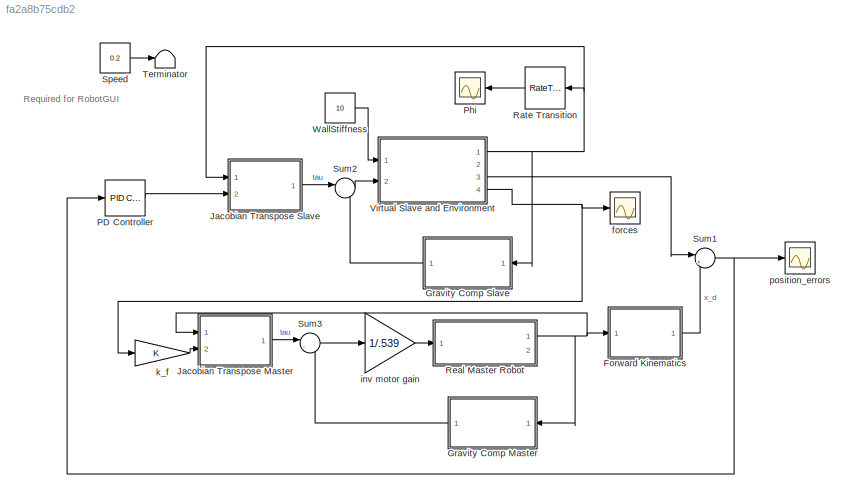
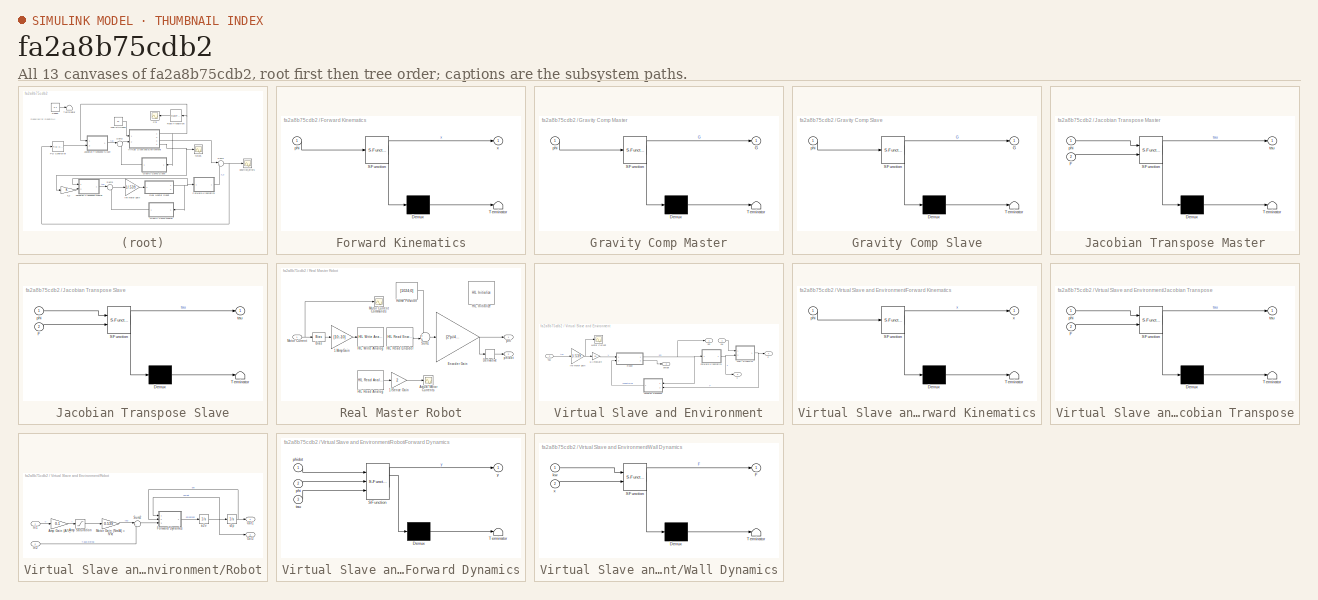
[diagram: thumbnail index - all 13 canvases of the model, root first then tree order]
MODEL slx_fa2a8b75cdb2
KIND model
CONFIG AbsTol = auto
CONFIG EnableMultiTasking = on
CONFIG FixedStep = 0.001
CONFIG MaxStep = auto
CONFIG MinStep = auto
CONFIG RelTol = 1e-3
CONFIG SampleTimeConstraint = Unconstrained
CONFIG Solver = ode1
CONFIG SolverName = ode1
CONFIG StartTime = 0.0
CONFIG StopTime = inf
BLOCK [SubSystem] Forward Kinematics
  ErrorFcn = Stateflow.Translate.translate
  PermitHierarchicalResolution = ExplicitOnly
  Ports = [1, 1]
  RequestExecContextInheritance = off
  SFBlockType = MATLAB Function
  TreatAsAtomicUnit = on
BLOCK [Demux] Forward Kinematics/ Demux 
  Outputs = 1
  Ports = [1, 1]
BLOCK [S-Function] Forward Kinematics/ SFunction 
  EnableBusSupport = on
  FunctionName = sf_sfun
  PortCounts = [1 2]
  Ports = [1, 2]
  SFcnIsStateOwnerBlock = off
  SFunctionDeploymentMode = off
  Tag = Stateflow S-Function directforcefeedback_opspace 6
BLOCK [Terminator] Forward Kinematics/ Terminator 
BLOCK [Inport] Forward Kinematics/phi
  IconDisplay = Port number
BLOCK [Outport] Forward Kinematics/x
  IconDisplay = Port number
BLOCK [SubSystem] Gravity Comp Master
  ErrorFcn = Stateflow.Translate.translate
  PermitHierarchicalResolution = ExplicitOnly
  Ports = [1, 1]
  RequestExecContextInheritance = off
  SFBlockType = MATLAB Function
  TreatAsAtomicUnit = on
BLOCK [Demux] Gravity Comp Master/ Demux 
  Outputs = 1
  Ports = [1, 1]
BLOCK [S-Function] Gravity Comp Master/ SFunction 
  EnableBusSupport = on
  FunctionName = sf_sfun
  PortCounts = [1 2]
  Ports = [1, 2]
  SFcnIsStateOwnerBlock = off
  SFunctionDeploymentMode = off
  Tag = Stateflow S-Function directforcefeedback_opspace 2
BLOCK [Terminator] Gravity Comp Master/ Terminator 
BLOCK [Outport] Gravity Comp Master/G
  IconDisplay = Port number
BLOCK [Inport] Gravity Comp Master/phi
  IconDisplay = Port number
BLOCK [SubSystem] Gravity Comp Slave
  ErrorFcn = Stateflow.Translate.translate
  PermitHierarchicalResolution = ExplicitOnly
  Ports = [1, 1]
  RequestExecContextInheritance = off
  SFBlockType = MATLAB Function
  TreatAsAtomicUnit = on
BLOCK [Demux] Gravity Comp Slave/ Demux 
  Outputs = 1
  Ports = [1, 1]
BLOCK [S-Function] Gravity Comp Slave/ SFunction 
  EnableBusSupport = on
  FunctionName = sf_sfun
  PortCounts = [1 2]
  Ports = [1, 2]
  SFcnIsStateOwnerBlock = off
  SFunctionDeploymentMode = off
  Tag = Stateflow S-Function directforcefeedback_opspace 4
BLOCK [Terminator] Gravity Comp Slave/ Terminator 
BLOCK [Outport] Gravity Comp Slave/G
  IconDisplay = Port number
BLOCK [Inport] Gravity Comp Slave/phi
  IconDisplay = Port number
BLOCK [SubSystem] Jacobian Transpose Master
  ErrorFcn = Stateflow.Translate.translate
  PermitHierarchicalResolution = ExplicitOnly
  Ports = [2, 1]
  RequestExecContextInheritance = off
  SFBlockType = MATLAB Function
  TreatAsAtomicUnit = on
BLOCK [Demux] Jacobian Transpose Master/ Demux 
  Outputs = 1
  Ports = [1, 1]
BLOCK [S-Function] Jacobian Transpose Master/ SFunction 
  EnableBusSupport = on
  FunctionName = sf_sfun
  PortCounts = [2 2]
  Ports = [2, 2]
  SFcnIsStateOwnerBlock = off
  SFunctionDeploymentMode = off
  Tag = Stateflow S-Function directforcefeedback_opspace 7
BLOCK [Terminator] Jacobian Transpose Master/ Terminator 
BLOCK [Inport] Jacobian Transpose Master/F
  IconDisplay = Port number
  Port = 2
BLOCK [Inport] Jacobian Transpose Master/phi
  IconDisplay = Port number
BLOCK [Outport] Jacobian Transpose Master/tau
  IconDisplay = Port number
BLOCK [SubSystem] Jacobian Transpose Slave
  ErrorFcn = Stateflow.Translate.translate
  PermitHierarchicalResolution = ExplicitOnly
  Ports = [2, 1]
  RequestExecContextInheritance = off
  SFBlockType = MATLAB Function
  TreatAsAtomicUnit = on
BLOCK [Demux] Jacobian Transpose Slave/ Demux 
  Outputs = 1
  Ports = [1, 1]
BLOCK [S-Function] Jacobian Transpose Slave/ SFunction 
  EnableBusSupport = on
  FunctionName = sf_sfun
  PortCounts = [2 2]
  Ports = [2, 2]
  SFcnIsStateOwnerBlock = off
  SFunctionDeploymentMode = off
  Tag = Stateflow S-Function directforcefeedback_opspace 8
BLOCK [Terminator] Jacobian Transpose Slave/ Terminator 
BLOCK [Inport] Jacobian Transpose Slave/F
  IconDisplay = Port number
  Port = 2
BLOCK [Inport] Jacobian Transpose Slave/phi
  IconDisplay = Port number
BLOCK [Outport] Jacobian Transpose Slave/tau
  IconDisplay = Port number
BLOCK [Reference] PD Controller  REF=simulink/Continuous/PID Controller
  AttributesFormatString = 'PGain='%<P>\n'DGain='%<D>
  Ports = [1, 1]
  SourceBlock = simulink/Continuous/PID Controller
  SourceProductBaseCode = SL
  SourceProductName = Simulink
  SourceType = PID 1dof
BLOCK [Scope] Phi
  AttributesFormatString = SampleTime =%<SampleTime>
  Floating = off
  NumInputPorts = 1
  Ports = [1]
  ScopeSpecificationString = Simulink.scopes.TimeScopeBlockCfg('CurrentConfiguration', extmgr.ConfigurationSet(extmgr.Configuration('Core','General UI',true),extmgr.Configuration('Core','Source UI',true),extmgr.Configuration('Sources','WiredSimulink',true,'DataLoggingVariableName','ScopeData3','DataLoggingSaveFormat','StructureWithTime','DataLoggingDecimation','10','DataLoggingDecimateData',true,'SampleTime','0.1'),extmgr.Con...<+1683ch>
BLOCK [RateTransition] Rate Transition
  OutPortSampleTime = 0.05
  OutPortSampleTimeMultiple = 10
  OutPortSampleTimeOpt = Inherit
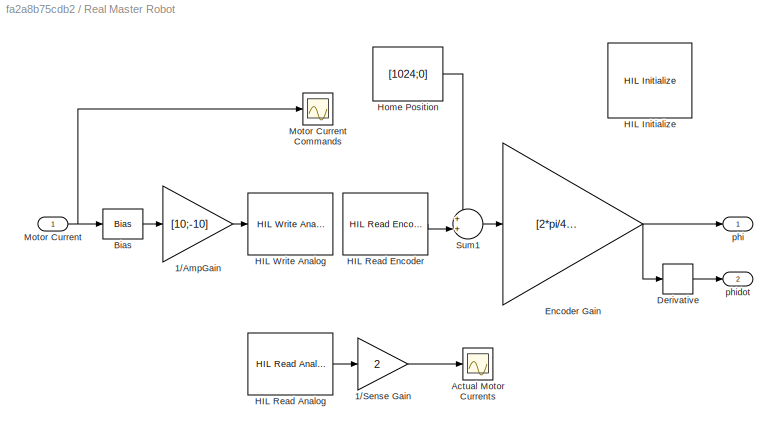
BLOCK [SubSystem] Real Master Robot
  Ports = [1, 2]
  RequestExecContextInheritance = off
BLOCK [Gain] Real Master Robot/1//AmpGain
  Gain = [10;-10]
  OutDataTypeStr = Inherit: Inherit via internal rule
  ParamDataTypeStr = Inherit: Inherit via internal rule
  SaturateOnIntegerOverflow = off
BLOCK [Gain] Real Master Robot/1//Sense Gain
  Gain = 2
  OutDataTypeStr = Inherit: Inherit via internal rule
  ParamDataTypeStr = Inherit: Inherit via internal rule
  SaturateOnIntegerOverflow = off
BLOCK [Scope] Real Master Robot/Actual Motor Currents
  Floating = off
  NumInputPorts = 1
  Ports = [1]
  ScopeSpecificationString = Simulink.scopes.TimeScopeBlockCfg('CurrentConfiguration', extmgr.ConfigurationSet(extmgr.Configuration('Core','General UI',true),extmgr.Configuration('Core','Source UI',true),extmgr.Configuration('Sources','WiredSimulink',true,'DataLoggingSaveFormat','StructureWithTime','DataLoggingDecimation','1','DataLoggingDecimateData',true),extmgr.Configuration('Visuals','Time Domain',true,'SerializedDisplays...<+1699ch>
BLOCK [Bias] Real Master Robot/Bias
  Bias = [-0.0425; 0.0445]
  SaturateOnIntegerOverflow = off
BLOCK [Derivative] Real Master Robot/Derivative
BLOCK [Gain] Real Master Robot/Encoder Gain
  Gain = [2*pi/4096 ; -2*pi/4096]
  OutDataTypeStr = Inherit: Inherit via internal rule
  ParamDataTypeStr = Inherit: Inherit via internal rule
  SaturateOnIntegerOverflow = off
BLOCK [Reference] Real Master Robot/HIL Initialize  REF=quarc_library/Data Acquisition/Generic/Configuration/HIL Initialize
  AttributesFormatString = %<object_name> (%<board_type>-%<board_number>)
  Ports = []
  SourceBlock = quarc_library/Data Acquisition/Generic/Configuration/HIL Initialize
  SourceProductName = QUARC Targets
  SourceType = HIL Initialize
  UserDataPersistent = on
BLOCK [Reference] Real Master Robot/HIL Read Analog  REF=quarc_library/Data Acquisition/Generic/Immediate I//O/HIL Read Analog
  AttributesFormatString = (%<object_name>)
  Ports = [0, 1]
  SourceBlock = quarc_library/Data Acquisition/Generic/Immediate I//O/HIL Read Analog
  SourceProductName = QUARC Targets
  SourceType = HIL Read Analog
  UserDataPersistent = on
BLOCK [Reference] Real Master Robot/HIL Read Encoder  REF=quarc_library/Data Acquisition/Generic/Immediate I//O/HIL Read Encoder
  AttributesFormatString = (%<object_name>)
  Ports = [0, 1]
  SourceBlock = quarc_library/Data Acquisition/Generic/Immediate I//O/HIL Read Encoder
  SourceProductName = QUARC Targets
  SourceType = HIL Read Encoder
  UserDataPersistent = on
BLOCK [Reference] Real Master Robot/HIL Write Analog  REF=quarc_library/Data Acquisition/Generic/Immediate I//O/HIL Write Analog
  AttributesFormatString = (%<object_name>)
  Ports = [1]
  SourceBlock = quarc_library/Data Acquisition/Generic/Immediate I//O/HIL Write Analog
  SourceProductName = QUARC Targets
  SourceType = HIL Write Analog
  UserDataPersistent = on
BLOCK [Constant] Real Master Robot/Home Position
  Value = [1024;0]
  VectorParams1D = off
BLOCK [Inport] Real Master Robot/Motor Current
  IconDisplay = Port number
BLOCK [Scope] Real Master Robot/Motor Current Commands
  Floating = off
  NumInputPorts = 1
  Ports = [1]
  ScopeSpecificationString = Simulink.scopes.TimeScopeBlockCfg('CurrentConfiguration', extmgr.ConfigurationSet(extmgr.Configuration('Core','General UI',true),extmgr.Configuration('Core','Source UI',true),extmgr.Configuration('Sources','WiredSimulink',true,'DataLoggingVariableName','ScopeData1','DataLoggingSaveFormat','StructureWithTime','DataLoggingDecimation','1','DataLoggingDecimateData',true),extmgr.Configuration('Visuals'...<+1709ch>
BLOCK [Sum] Real Master Robot/Sum1
  IconShape = round
  InputSameDT = off
  Inputs = ++|
  OutDataTypeStr = Inherit: Inherit via internal rule
  Ports = [2, 1]
  SaturateOnIntegerOverflow = off
BLOCK [Outport] Real Master Robot/phi
  IconDisplay = Port number
BLOCK [Outport] Real Master Robot/phidot
  IconDisplay = Port number
  Port = 2
BLOCK [Constant] Speed
  AttributesFormatString = (circles/sec)
  Value = 0.2
BLOCK [Sum] Sum1
  IconShape = round
  InputSameDT = off
  Inputs = |+-
  OutDataTypeStr = Inherit: Inherit via internal rule
  Ports = [2, 1]
  SaturateOnIntegerOverflow = off
BLOCK [Sum] Sum2
  IconShape = round
  InputSameDT = off
  Inputs = |-+
  OutDataTypeStr = Inherit: Inherit via internal rule
  Ports = [2, 1]
  SaturateOnIntegerOverflow = off
BLOCK [Sum] Sum3
  IconShape = round
  InputSameDT = off
  Inputs = |-+
  OutDataTypeStr = Inherit: Inherit via internal rule
  Ports = [2, 1]
  SaturateOnIntegerOverflow = off
BLOCK [Terminator] Terminator
BLOCK [SubSystem] Virtual Slave and Environment
  Ports = [2, 4]
  RequestExecContextInheritance = off
BLOCK [Gain] Virtual Slave and Environment/1//AmpGain
  Gain = 10
  OutDataTypeStr = Inherit: Inherit via internal rule
  ParamDataTypeStr = Inherit: Inherit via internal rule
  SaturateOnIntegerOverflow = off
BLOCK [Outport] Virtual Slave and Environment/F
  IconDisplay = Port number
  Port = 4
BLOCK [SubSystem] Virtual Slave and Environment/Forward Kinematics
  ErrorFcn = Stateflow.Translate.translate
  PermitHierarchicalResolution = ExplicitOnly
  Ports = [1, 1]
  RequestExecContextInheritance = off
  SFBlockType = MATLAB Function
  TreatAsAtomicUnit = on
BLOCK [Demux] Virtual Slave and Environment/Forward Kinematics/ Demux 
  Outputs = 1
  Ports = [1, 1]
BLOCK [S-Function] Virtual Slave and Environment/Forward Kinematics/ SFunction 
  EnableBusSupport = on
  FunctionName = sf_sfun
  PortCounts = [1 2]
  Ports = [1, 2]
  SFcnIsStateOwnerBlock = off
  SFunctionDeploymentMode = off
  Tag = Stateflow S-Function directforcefeedback_opspace 9
BLOCK [Terminator] Virtual Slave and Environment/Forward Kinematics/ Terminator 
BLOCK [Inport] Virtual Slave and Environment/Forward Kinematics/phi
  IconDisplay = Port number
BLOCK [Outport] Virtual Slave and Environment/Forward Kinematics/x
  IconDisplay = Port number
BLOCK [SubSystem] Virtual Slave and Environment/Jacobian Transpose
  ErrorFcn = Stateflow.Translate.translate
  PermitHierarchicalResolution = ExplicitOnly
  Ports = [2, 1]
  RequestExecContextInheritance = off
  SFBlockType = MATLAB Function
  TreatAsAtomicUnit = on
BLOCK [Demux] Virtual Slave and Environment/Jacobian Transpose/ Demux 
  Outputs = 1
  Ports = [1, 1]
BLOCK [S-Function] Virtual Slave and Environment/Jacobian Transpose/ SFunction 
  EnableBusSupport = on
  FunctionName = sf_sfun
  PortCounts = [2 2]
  Ports = [2, 2]
  SFcnIsStateOwnerBlock = off
  SFunctionDeploymentMode = off
  Tag = Stateflow S-Function directforcefeedback_opspace 1
BLOCK [Terminator] Virtual Slave and Environment/Jacobian Transpose/ Terminator 
BLOCK [Inport] Virtual Slave and Environment/Jacobian Transpose/F
  IconDisplay = Port number
  Port = 2
BLOCK [Inport] Virtual Slave and Environment/Jacobian Transpose/phi
  IconDisplay = Port number
BLOCK [Outport] Virtual Slave and Environment/Jacobian Transpose/tau
  IconDisplay = Port number
BLOCK [Scope] Virtual Slave and Environment/Motor Current
  Floating = off
  NumInputPorts = 1
  Ports = [1]
  ScopeSpecificationString = Simulink.scopes.TimeScopeBlockCfg('CurrentConfiguration', extmgr.ConfigurationSet(extmgr.Configuration('Core','General UI',true),extmgr.Configuration('Core','Source UI',true),extmgr.Configuration('Sources','WiredSimulink',true,'DataLoggingVariableName','ScopeData1','DataLoggingSaveFormat','StructureWithTime','DataLoggingDecimation','1','DataLoggingDecimateData',true),extmgr.Configuration('Visuals'...<+1651ch>
BLOCK [SubSystem] Virtual Slave and Environment/Robot
  Ports = [2, 2]
  RequestExecContextInheritance = off
BLOCK [Gain] Virtual Slave and Environment/Robot/Amp Gain (A//V)
  Gain = 0.1
  OutDataTypeStr = Inherit: Inherit via internal rule
  ParamDataTypeStr = Inherit: Inherit via internal rule
  SaturateOnIntegerOverflow = off
BLOCK [Saturate] Virtual Slave and Environment/Robot/Amp Saturation
  InputPortMap = u0
  LowerLimit = -1
  Ports = [1, 1]
  UpperLimit = 1
  ZeroCross = off
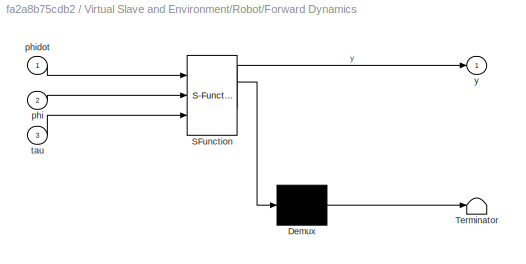
BLOCK [SubSystem] Virtual Slave and Environment/Robot/Forward Dynamics
  ErrorFcn = Stateflow.Translate.translate
  PermitHierarchicalResolution = ExplicitOnly
  Ports = [3, 1]
  RequestExecContextInheritance = off
  SFBlockType = MATLAB Function
  TreatAsAtomicUnit = on
BLOCK [Demux] Virtual Slave and Environment/Robot/Forward Dynamics/ Demux 
  Outputs = 1
  Ports = [1, 1]
BLOCK [S-Function] Virtual Slave and Environment/Robot/Forward Dynamics/ SFunction 
  EnableBusSupport = on
  FunctionName = sf_sfun
  PortCounts = [3 2]
  Ports = [3, 2]
  SFcnIsStateOwnerBlock = off
  SFunctionDeploymentMode = off
  Tag = Stateflow S-Function directforcefeedback_opspace 3
BLOCK [Terminator] Virtual Slave and Environment/Robot/Forward Dynamics/ Terminator 
BLOCK [Inport] Virtual Slave and Environment/Robot/Forward Dynamics/phi
  IconDisplay = Port number
  Port = 2
BLOCK [Inport] Virtual Slave and Environment/Robot/Forward Dynamics/phidot
  IconDisplay = Port number
BLOCK [Inport] Virtual Slave and Environment/Robot/Forward Dynamics/tau
  IconDisplay = Port number
  Port = 3
BLOCK [Outport] Virtual Slave and Environment/Robot/Forward Dynamics/y
  IconDisplay = Port number
BLOCK [Inport] Virtual Slave and Environment/Robot/In1
  IconDisplay = Port number
BLOCK [Inport] Virtual Slave and Environment/Robot/In2
  IconDisplay = Port number
  Port = 2
BLOCK [Gain] Virtual Slave and Environment/Robot/Motor Gain (Nm//A) = N*kt
  Gain = 0.539
  OutDataTypeStr = Inherit: Inherit via internal rule
  ParamDataTypeStr = Inherit: Inherit via internal rule
  SaturateOnIntegerOverflow = off
BLOCK [Outport] Virtual Slave and Environment/Robot/Out1
  IconDisplay = Port number
BLOCK [Outport] Virtual Slave and Environment/Robot/Out2
  IconDisplay = Port number
  Port = 2
BLOCK [Sum] Virtual Slave and Environment/Robot/Sum2
  IconShape = round
  InputSameDT = off
  Inputs = |+-
  OutDataTypeStr = Inherit: Inherit via internal rule
  Ports = [2, 1]
  SaturateOnIntegerOverflow = off
BLOCK [Integrator] Virtual Slave and Environment/Robot/a2v
  Ports = [1, 1]
BLOCK [Integrator] Virtual Slave and Environment/Robot/v2p
  InitialCondition = [pi/2;0]
  Ports = [1, 1]
BLOCK [Inport] Virtual Slave and Environment/Tau
  IconDisplay = Port number
  Port = 2
BLOCK [SubSystem] Virtual Slave and Environment/Wall Dynamics
  ErrorFcn = Stateflow.Translate.translate
  PermitHierarchicalResolution = ExplicitOnly
  Ports = [2, 1]
  RequestExecContextInheritance = off
  SFBlockType = MATLAB Function
  TreatAsAtomicUnit = on
BLOCK [Demux] Virtual Slave and Environment/Wall Dynamics/ Demux 
  Outputs = 1
  Ports = [1, 1]
BLOCK [S-Function] Virtual Slave and Environment/Wall Dynamics/ SFunction 
  EnableBusSupport = on
  FunctionName = sf_sfun
  PortCounts = [2 2]
  Ports = [2, 2]
  SFcnIsStateOwnerBlock = off
  SFunctionDeploymentMode = off
  Tag = Stateflow S-Function directforcefeedback_opspace 5
BLOCK [Terminator] Virtual Slave and Environment/Wall Dynamics/ Terminator 
BLOCK [Outport] Virtual Slave and Environment/Wall Dynamics/F
  IconDisplay = Port number
BLOCK [Inport] Virtual Slave and Environment/Wall Dynamics/kw
  IconDisplay = Port number
BLOCK [Inport] Virtual Slave and Environment/Wall Dynamics/x
  IconDisplay = Port number
  Port = 2
BLOCK [Gain] Virtual Slave and Environment/inv motor gain
  Gain = 1/.539
  OutDataTypeStr = Inherit: Inherit via internal rule
  ParamDataTypeStr = Inherit: Inherit via internal rule
  SaturateOnIntegerOverflow = off
BLOCK [Inport] Virtual Slave and Environment/kw
  IconDisplay = Port number
BLOCK [Outport] Virtual Slave and Environment/phi
  IconDisplay = Port number
BLOCK [Outport] Virtual Slave and Environment/phidot
  IconDisplay = Port number
  Port = 2
BLOCK [Outport] Virtual Slave and Environment/x
  IconDisplay = Port number
  Port = 3
BLOCK [Constant] WallStiffness
  AttributesFormatString = (N/mm)
  Value = 10
BLOCK [Scope] forces
  Floating = off
  NumInputPorts = 1
  Ports = [1]
  ScopeSpecificationString = Simulink.scopes.TimeScopeBlockCfg('CurrentConfiguration', extmgr.ConfigurationSet(extmgr.Configuration('Core','General UI',true),extmgr.Configuration('Core','Source UI',true),extmgr.Configuration('Sources','WiredSimulink',true,'DataLoggingVariableName','forces','DataLogging',true,'DataLoggingDecimateData',true,'DataLoggingDecimation','1','DataLoggingSaveFormat','StructureWithTime'),extmgr.Configur...<+1507ch>
BLOCK [Gain] inv motor gain
  Gain = 1/.539
  OutDataTypeStr = Inherit: Inherit via internal rule
  ParamDataTypeStr = Inherit: Inherit via internal rule
  SaturateOnIntegerOverflow = off
BLOCK [Gain] k_f
  OutDataTypeStr = Inherit: Inherit via internal rule
  ParamDataTypeStr = Inherit: Inherit via internal rule
  SaturateOnIntegerOverflow = off
BLOCK [Scope] position_errors
  Floating = off
  NumInputPorts = 1
  Ports = [1]
  ScopeSpecificationString = Simulink.scopes.TimeScopeBlockCfg('CurrentConfiguration', extmgr.ConfigurationSet(extmgr.Configuration('Core','General UI',true),extmgr.Configuration('Core','Source UI',true),extmgr.Configuration('Sources','WiredSimulink',true,'DataLoggingVariableName','position_errors','DataLogging',true,'DataLoggingDecimateData',true,'DataLoggingDecimation','1','DataLoggingSaveFormat','StructureWithTime'),extmgr...<+1526ch>
ANNOTATION (root): Required for RobotGUI
LINE Forward Kinematics:1 -> Sum1:2
LINE Gravity Comp Master:1 -> Sum3:2
LINE Gravity Comp Slave:1 -> Sum2:2
LINE Jacobian Transpose Master:1 -> Sum3:1
LINE Jacobian Transpose Slave:1 -> Sum2:1
LINE PD Controller:1 -> Jacobian Transpose Slave:2
LINE Rate Transition:1 -> Phi:1
LINE Real Master Robot/1//AmpGain:1 -> Real Master Robot/HIL Write Analog:1
LINE Real Master Robot/1//Sense Gain:1 -> Real Master Robot/Actual Motor Currents:1
LINE Real Master Robot/Bias:1 -> Real Master Robot/1//AmpGain:1
LINE Real Master Robot/Derivative:1 -> Real Master Robot/phidot:1
NET Real Master Robot/Encoder Gain:1 -> Real Master Robot/Derivative:1, Real Master Robot/phi:1
LINE Real Master Robot/HIL Read Analog:1 -> Real Master Robot/1//Sense Gain:1
LINE Real Master Robot/HIL Read Encoder:1 -> Real Master Robot/Sum1:2
LINE Real Master Robot/Home Position:1 -> Real Master Robot/Sum1:1
NET Real Master Robot/Motor Current:1 -> Real Master Robot/Bias:1, Real Master Robot/Motor Current Commands:1
LINE Real Master Robot/Sum1:1 -> Real Master Robot/Encoder Gain:1
NET Real Master Robot:1 -> Forward Kinematics:1, Gravity Comp Master:1, Jacobian Transpose Master:1
LINE Speed:1 -> Terminator:1
NET Sum1:1 -> PD Controller:1, position_errors:1
LINE Sum2:1 -> Virtual Slave and Environment:2
LINE Sum3:1 -> inv motor gain:1
LINE Virtual Slave and Environment/1//AmpGain:1 -> Virtual Slave and Environment/Robot:1
NET Virtual Slave and Environment/Forward Kinematics:1 -> Virtual Slave and Environment/Wall Dynamics:2, Virtual Slave and Environment/x:1
LINE Virtual Slave and Environment/Jacobian Transpose:1 -> Virtual Slave and Environment/Robot:2
LINE Virtual Slave and Environment/Robot/Amp Gain (A//V):1 -> Virtual Slave and Environment/Robot/Amp Saturation:1
LINE Virtual Slave and Environment/Robot/Amp Saturation:1 -> Virtual Slave and Environment/Robot/Motor Gain (Nm//A) = N*kt:1
LINE Virtual Slave and Environment/Robot/Forward Dynamics:1 -> Virtual Slave and Environment/Robot/a2v:1
LINE Virtual Slave and Environment/Robot/In1:1 -> Virtual Slave and Environment/Robot/Amp Gain (A//V):1
LINE Virtual Slave and Environment/Robot/In2:1 -> Virtual Slave and Environment/Robot/Sum2:2
LINE Virtual Slave and Environment/Robot/Motor Gain (Nm//A) = N*kt:1 -> Virtual Slave and Environment/Robot/Sum2:1
LINE Virtual Slave and Environment/Robot/Sum2:1 -> Virtual Slave and Environment/Robot/Forward Dynamics:3
NET Virtual Slave and Environment/Robot/a2v:1 -> Virtual Slave and Environment/Robot/Forward Dynamics:1, Virtual Slave and Environment/Robot/Out2:1, Virtual Slave and Environment/Robot/v2p:1
NET Virtual Slave and Environment/Robot/v2p:1 -> Virtual Slave and Environment/Robot/Forward Dynamics:2, Virtual Slave and Environment/Robot/Out1:1
NET Virtual Slave and Environment/Robot:1 -> Virtual Slave and Environment/Forward Kinematics:1, Virtual Slave and Environment/Jacobian Transpose:1, Virtual Slave and Environment/phi:1
LINE Virtual Slave and Environment/Robot:2 -> Virtual Slave and Environment/phidot:1
LINE Virtual Slave and Environment/Tau:1 -> Virtual Slave and Environment/inv motor gain:1
NET Virtual Slave and Environment/Wall Dynamics:1 -> Virtual Slave and Environment/F:1, Virtual Slave and Environment/Jacobian Transpose:2
NET Virtual Slave and Environment/inv motor gain:1 -> Virtual Slave and Environment/1//AmpGain:1, Virtual Slave and Environment/Motor Current:1
LINE Virtual Slave and Environment/kw:1 -> Virtual Slave and Environment/Wall Dynamics:1
NET Virtual Slave and Environment:1 -> Gravity Comp Slave:1, Jacobian Transpose Slave:1, Rate Transition:1
LINE Virtual Slave and Environment:3 -> Sum1:1
NET Virtual Slave and Environment:4 -> forces:1, k_f:1
LINE WallStiffness:1 -> Virtual Slave and Environment:1
LINE inv motor gain:1 -> Real Master Robot:1
LINE k_f:1 -> Jacobian Transpose Master:2
note: NET lines group one-source signal fan-out (src -> all destinations, sorted); 1:1 wires keep LINE
CHART Virtual Slave and Environment/Jacobian
Transpose states=1 transitions=1
  STATE_LABEL 'eML_blk_kernel()'
  STATE_LABEL "SCRIPT:\nfunction tau = fcn(phi, F)\n% This block supports an embeddable subset of the MATLAB language.\n% See the help menu for details. \na1=0.15;\na2=0.15;\n\nJ11 = -a1*sin(phi(1));\nJ12 = -a2*sin(phi(2));\nJ21 = a1*cos(phi(1));\nJ22 = a2*cos(phi(2));\n\nJ = [J11 J12; J21 J22];\n\ntau = J'*F;\n"  <repeated x3 — deduplicated; at blocks: Jacobian>
CHART Gravity Comp Master states=1 transitions=1
  STATE_LABEL 'eML_blk_kernel()'
  STATE_LABEL 'SCRIPT:\nfunction G = fcn(phi)\n% This block supports an embeddable subset of the MATLAB language.\n% See the help menu for details. \n\n\na1 = 0.15;  % link 1 length\na2 = 0.15;  % link 2 length\nm1 = 0.092;  % link 1 mass  \nm2 = 0.077; % link 2 mas\nr01 = 0.062; % link 1 center of mass\nr12 = 0.036; % link 2 COM\ng = 9.8; % gravitational constant\nN1 = 70; % gear ratios\nN2 = 70;\n\nG1 = (r01*m1+a1*m2)*g*cos(p...<+67ch>'
CHART Virtual Slave and Environment/Robot/Forward
Dynamics states=1 transitions=1
  STATE_LABEL 'eML_blk_kernel()'
  STATE_LABEL 'SCRIPT:\nfunction y = fcn(phidot,phi,tau)\n% This block supports an embeddable subset of the MATLAB language.\n% See the help menu for details. \n\na1 = 0.15;  % link 1 length\na2 = 0.15;  % link 2 length\nm1 = 0.092;  % link 1 mass  \nm2 = 0.077; % link 2 mas\nr01 = 0.062; % link 1 center of mass\nr12 = 0.036; % link 2 COM\nI1 = 0.64e-3;  % link 1 inertia\nI2 = 0.30e-3;  % link 2 inertia\nJm1 = 0.65e-6; % mot...<+710ch>'
CHART Gravity Comp Slave states=1 transitions=1
  STATE_LABEL 'eML_blk_kernel()'
  STATE_LABEL 'SCRIPT:\nfunction G = fcn(phi)\n% This block supports an embeddable subset of the MATLAB language.\n% See the help menu for details. \n\n\na1 = 0.15;  % link 1 length\na2 = 0.15;  % link 2 length\nm1 = 0.092;  % link 1 mass  \nm2 = 0.077; % link 2 mas\nr01 = 0.062; % link 1 center of mass\nr12 = 0.036; % link 2 COM\ng = 9.8; % gravitational constant\nN1 = 70; % gear ratios\nN2 = 70;\n\nG1 = (r01*m1+a1*m2)*g*cos(p...<+67ch>'
CHART Virtual Slave and Environment/Wall Dynamics states=1 transitions=1
  STATE_LABEL 'eML_blk_kernel()'
  STATE_LABEL 'SCRIPT:\nfunction F = fcn(kw,x)\n% This block supports an embeddable subset of the MATLAB language.\n% See the help menu for details. \n\n% kw = wall stiffness in N/mm, e.g. 1 N/mm\n\nh = -0.025; % wall height\n\nF = [0;0];\n\nif x(2)<h\n    F(2) = (kw*1000)*(x(2)-h);\nend'
CHART Forward
Kinematics states=1 transitions=1
  STATE_LABEL 'eML_blk_kernel()'
  STATE_LABEL 'SCRIPT:\nfunction x = fcn(phi)\n% This block supports an embeddable subset of the MATLAB language.\n% See the help menu for details. \n\na1=0.15;\na2=0.15;\nx = [0;0];\nx(1) = a1*cos(phi(1))+a2*cos(phi(2));\nx(2) = a1*sin(phi(1))+a2*sin(phi(2));\n'
CHART Jacobian
Transpose Master states=1 transitions=1
  STATE_LABEL 'eML_blk_kernel()'
CHART Jacobian
Transpose Slave states=1 transitions=1
  STATE_LABEL 'eML_blk_kernel()'
CHART Virtual Slave and Environment/Forward
Kinematics states=1 transitions=1
  STATE_LABEL 'eML_blk_kernel()'
  STATE_LABEL 'SCRIPT:\nfunction x = fcn(phi)\n% This block supports an embeddable subset of the MATLAB language.\n% See the help menu for details. \n\na1=0.15;\na2=0.15;\nx = [0;0];\nx(1) = a1*cos(phi(1))+a2*cos(phi(2));\nx(2) = a1*sin(phi(1))+a2*sin(phi(2));\n'
